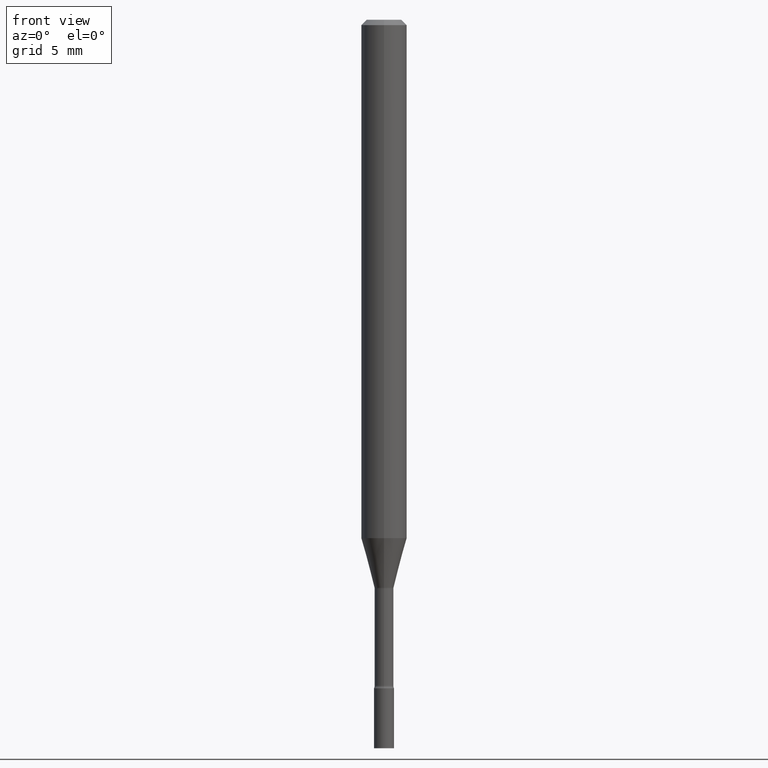
[diagram: clean part render]
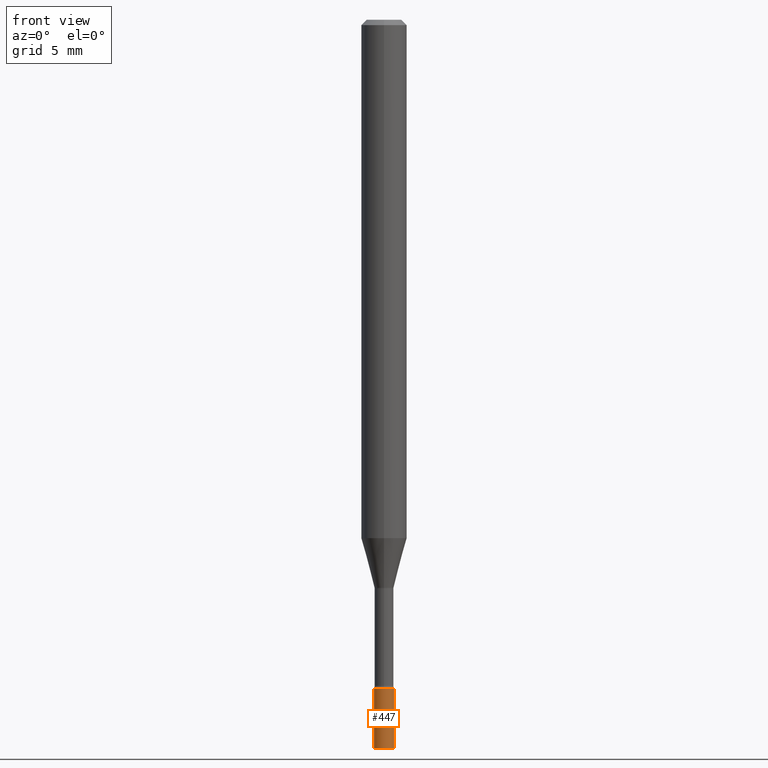
[diagram: same view with one face highlighted and labeled with its STEP entity id]
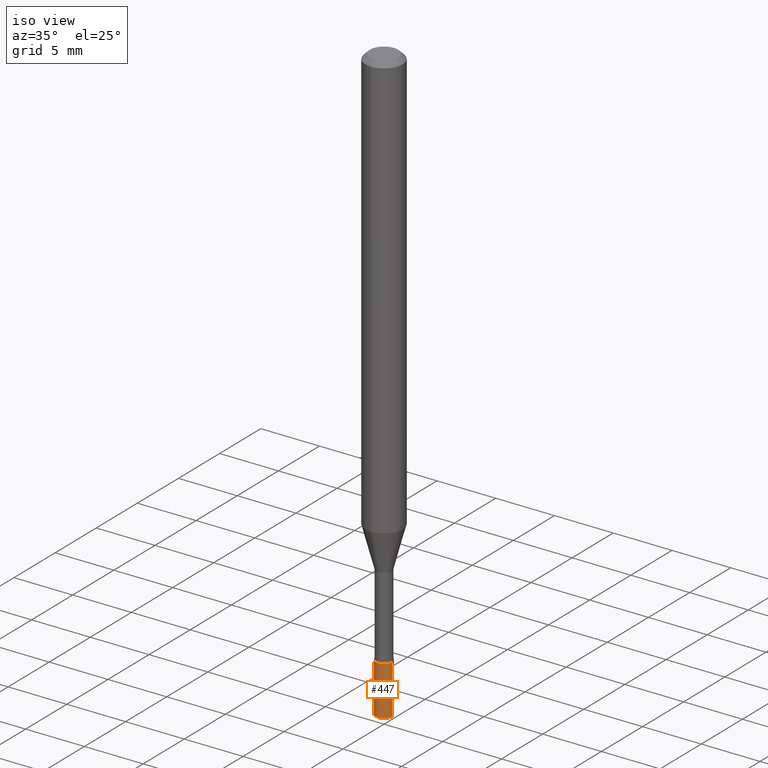
[diagram: same view with one face highlighted and labeled with its STEP entity id]
A machine part, front view. The second image highlights one B-rep face of the part: STEP entity #447.
A second angle (iso view) of the same face is appended — the face is thin or edge-on in the first view.
In plain terms, the highlighted cylindrical surface (edge-blend (fillet) strip) has radius 0.6985 mm, axis along (-0, 0, 1).
Its self-contained STEP definition (entity closure, byte-faithful):
#16 = CARTESIAN_POINT ( 'NONE',  ( 0.02750000000000000014, -6.598899730413544603E-15, -1.834999999999999964 ) ) ;
#20 = EDGE_CURVE ( 'NONE', #48, #360, #493, .T. ) ;
#48 = VERTEX_POINT ( 'NONE', #72 ) ;
#66 = FACE_OUTER_BOUND ( 'NONE', #262, .T. ) ;
#72 = CARTESIAN_POINT ( 'NONE',  ( -0.02750000000000000014, -6.499516214897703913E-15, -1.834999999999999964 ) ) ;
#88 = AXIS2_PLACEMENT_3D ( 'NONE', #130, #484, #290 ) ;
#108 = DIRECTION ( 'NONE',  ( -2.445468806185136597E-29, 3.491481338843145583E-15, 1.000000000000000000 ) ) ;
#123 = ORIENTED_EDGE ( 'NONE', *, *, #155, .T. ) ;
#128 = EDGE_CURVE ( 'NONE', #357, #360, #293, .T. ) ;
#129 = LINE ( 'NONE', #253, #328 ) ;
#130 = CARTESIAN_POINT ( 'NONE',  ( 4.890937612370273194E-29, -6.982962677686291165E-15, -2.000000000000000000 ) ) ;
#148 = ORIENTED_EDGE ( 'NONE', *, *, #128, .T. ) ;
#155 = EDGE_CURVE ( 'NONE', #393, #357, #361, .T. ) ;
#166 = CARTESIAN_POINT ( 'NONE',  ( 0.02750000000000000014, -1.920314736363723444E-16, 1.340948613343882413E-30 ) ) ;
#183 = AXIS2_PLACEMENT_3D ( 'NONE', #464, #108, #272 ) ;
#189 = DIRECTION ( 'NONE',  ( 1.000000000000000000, -6.982962677686266711E-15, 4.876176775795935793E-29 ) ) ;
#253 = CARTESIAN_POINT ( 'NONE',  ( -0.02750000000000000014, 1.953992523340275521E-16, -1.352707149820099181E-30 ) ) ;
#262 = EDGE_LOOP ( 'NONE', ( #478, #123, #148, #302 ) ) ;
#268 = CARTESIAN_POINT ( 'NONE',  ( 0.000000000000000000, 0.000000000000000000, 0.000000000000000000 ) ) ;
#272 = DIRECTION ( 'NONE',  ( 1.000000000000000000, -6.982962677686279332E-15, 0.000000000000000000 ) ) ;
#273 = CYLINDRICAL_SURFACE ( 'NONE', #330, 0.02750000000000000014 ) ;
#276 = CARTESIAN_POINT ( 'NONE',  ( -0.02750000000000000014, -6.499516214897703913E-15, -2.000000000000000000 ) ) ;
#290 = DIRECTION ( 'NONE',  ( 1.000000000000000000, -6.982962677686279332E-15, 0.000000000000000000 ) ) ;
#293 = LINE ( 'NONE', #166, #474 ) ;
#302 = ORIENTED_EDGE ( 'NONE', *, *, #20, .F. ) ;
#328 = VECTOR ( 'NONE', #341, 39.37007874015748143 ) ;
#329 = EDGE_CURVE ( 'NONE', #393, #48, #129, .T. ) ;
#330 = AXIS2_PLACEMENT_3D ( 'NONE', #268, #509, #189 ) ;
#341 = DIRECTION ( 'NONE',  ( -2.445468806185136877E-29, 3.491481338843145188E-15, 1.000000000000000000 ) ) ;
#357 = VERTEX_POINT ( 'NONE', #408 ) ;
#360 = VERTEX_POINT ( 'NONE', #16 ) ;
#361 = CIRCLE ( 'NONE', #88, 0.02750000000000000014 ) ;
#393 = VERTEX_POINT ( 'NONE', #276 ) ;
#408 = CARTESIAN_POINT ( 'NONE',  ( 0.02750000000000000014, -7.174994151322663658E-15, -2.000000000000000000 ) ) ;
#442 = DIRECTION ( 'NONE',  ( -2.445468806185136877E-29, 3.491481338843145188E-15, 1.000000000000000000 ) ) ;
#447 = ADVANCED_FACE ( 'NONE', ( #66 ), #273, .T. ) ;
#464 = CARTESIAN_POINT ( 'NONE',  ( 4.487435259349726059E-29, -6.406868256777172111E-15, -1.834999999999999964 ) ) ;
#474 = VECTOR ( 'NONE', #442, 39.37007874015748143 ) ;
#478 = ORIENTED_EDGE ( 'NONE', *, *, #329, .F. ) ;
#484 = DIRECTION ( 'NONE',  ( -2.445468806185136597E-29, 3.491481338843145583E-15, 1.000000000000000000 ) ) ;
#493 = CIRCLE ( 'NONE', #183, 0.02750000000000000014 ) ;
#509 = DIRECTION ( 'NONE',  ( -2.445468806185136597E-29, 3.491481338843145583E-15, 1.000000000000000000 ) ) ;